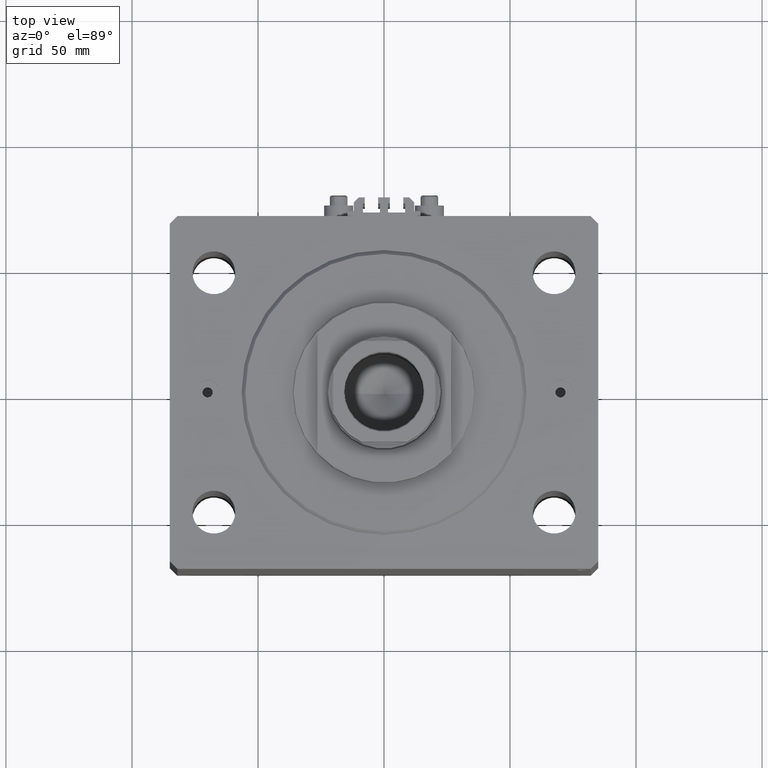
[diagram: clean part render]
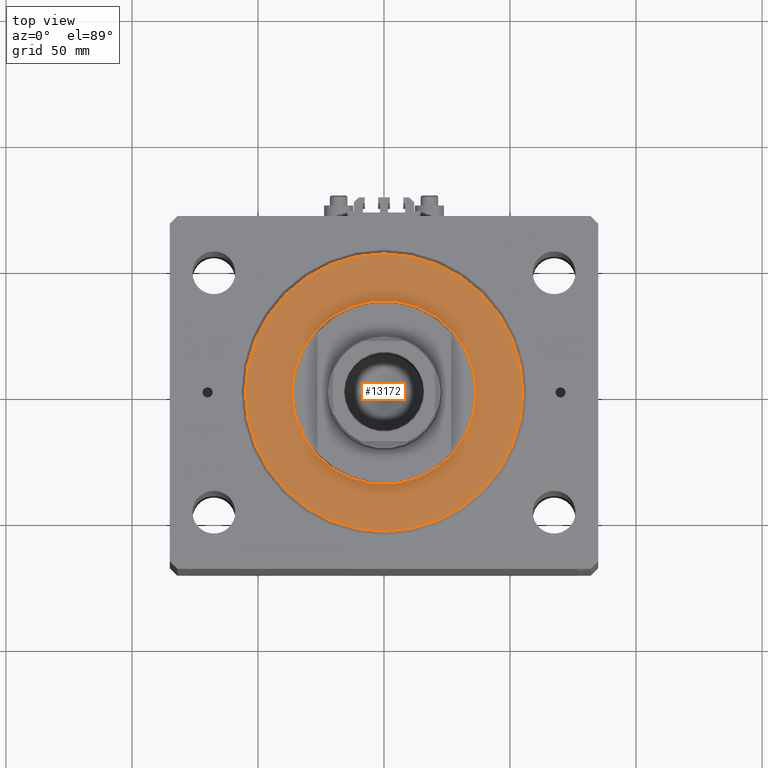
[diagram: same view with one face highlighted and labeled with its STEP entity id]
A machine part, top view. The second image highlights one B-rep face of the part: STEP entity #13172.
In plain terms, the highlighted planar face has unit normal (0, 0, -1).
Its self-contained STEP definition (entity closure, byte-faithful):
#1347 = CIRCLE ( 'NONE', #14326, 36.50000000000000000 ) ;
#1395 = DIRECTION ( 'NONE',  ( 0.000000000000000000, 0.000000000000000000, 1.000000000000000000 ) ) ;
#2717 = DIRECTION ( 'NONE',  ( -0.000000000000000000, -0.000000000000000000, -1.000000000000000000 ) ) ;
#4160 = VERTEX_POINT ( 'NONE', #22828 ) ;
#5340 = VERTEX_POINT ( 'NONE', #23504 ) ;
#5798 = DIRECTION ( 'NONE',  ( 0.000000000000000000, 0.000000000000000000, 1.000000000000000000 ) ) ;
#6238 = EDGE_CURVE ( 'NONE', #6487, #11346, #31523, .T. ) ;
#6296 = DIRECTION ( 'NONE',  ( 1.000000000000000000, 0.000000000000000000, 0.000000000000000000 ) ) ;
#6487 = VERTEX_POINT ( 'NONE', #12406 ) ;
#8943 = EDGE_CURVE ( 'NONE', #4160, #5340, #33856, .T. ) ;
#9151 = CARTESIAN_POINT ( 'NONE',  ( 0.000000000000000000, 0.000000000000000000, 0.000000000000000000 ) ) ;
#9672 = PLANE ( 'NONE',  #37798 ) ;
#11346 = VERTEX_POINT ( 'NONE', #34050 ) ;
#12406 = CARTESIAN_POINT ( 'NONE',  ( -55.00000000000002132, 6.827405905246496343E-15, 0.000000000000000000 ) ) ;
#12509 = EDGE_LOOP ( 'NONE', ( #41496, #19478 ) ) ;
#13172 = ADVANCED_FACE ( 'NONE', ( #41248, #33395 ), #9672, .F. ) ;
#14326 = AXIS2_PLACEMENT_3D ( 'NONE', #9151, #5798, #45436 ) ;
#15417 = ORIENTED_EDGE ( 'NONE', *, *, #6238, .T. ) ;
#15603 = DIRECTION ( 'NONE',  ( 1.000000000000000000, 0.000000000000000000, 0.000000000000000000 ) ) ;
#19478 = ORIENTED_EDGE ( 'NONE', *, *, #28762, .T. ) ;
#19961 = CIRCLE ( 'NONE', #20728, 55.00000000000002132 ) ;
#20530 = EDGE_LOOP ( 'NONE', ( #37796, #15417 ) ) ;
#20617 = CARTESIAN_POINT ( 'NONE',  ( 0.000000000000000000, 0.000000000000000000, 0.000000000000000000 ) ) ;
#20728 = AXIS2_PLACEMENT_3D ( 'NONE', #22539, #29478, #44740 ) ;
#21106 = CARTESIAN_POINT ( 'NONE',  ( 0.000000000000000000, 0.000000000000000000, 0.000000000000000000 ) ) ;
#22539 = CARTESIAN_POINT ( 'NONE',  ( 0.000000000000000000, 0.000000000000000000, 0.000000000000000000 ) ) ;
#22828 = CARTESIAN_POINT ( 'NONE',  ( 36.50000000000000000, 0.000000000000000000, -2.168404344971008868E-16 ) ) ;
#23221 = DIRECTION ( 'NONE',  ( 0.000000000000000000, 0.000000000000000000, 1.000000000000000000 ) ) ;
#23504 = CARTESIAN_POINT ( 'NONE',  ( -36.50000000000000000, 4.469960816887838430E-15, -2.168404344971008868E-16 ) ) ;
#24469 = DIRECTION ( 'NONE',  ( 1.000000000000000000, 0.000000000000000000, -0.000000000000000000 ) ) ;
#25244 = EDGE_CURVE ( 'NONE', #11346, #6487, #19961, .T. ) ;
#28762 = EDGE_CURVE ( 'NONE', #5340, #4160, #1347, .T. ) ;
#29478 = DIRECTION ( 'NONE',  ( -0.000000000000000000, -0.000000000000000000, -1.000000000000000000 ) ) ;
#31523 = CIRCLE ( 'NONE', #43696, 55.00000000000002132 ) ;
#31585 = AXIS2_PLACEMENT_3D ( 'NONE', #37532, #23221, #15603 ) ;
#33395 = FACE_OUTER_BOUND ( 'NONE', #20530, .T. ) ;
#33856 = CIRCLE ( 'NONE', #31585, 36.50000000000000000 ) ;
#34050 = CARTESIAN_POINT ( 'NONE',  ( 55.00000000000002132, 0.000000000000000000, 0.000000000000000000 ) ) ;
#37532 = CARTESIAN_POINT ( 'NONE',  ( 0.000000000000000000, 0.000000000000000000, 0.000000000000000000 ) ) ;
#37796 = ORIENTED_EDGE ( 'NONE', *, *, #25244, .T. ) ;
#37798 = AXIS2_PLACEMENT_3D ( 'NONE', #21106, #1395, #24469 ) ;
#41248 = FACE_BOUND ( 'NONE', #12509, .T. ) ;
#41496 = ORIENTED_EDGE ( 'NONE', *, *, #8943, .T. ) ;
#43696 = AXIS2_PLACEMENT_3D ( 'NONE', #20617, #2717, #6296 ) ;
#44740 = DIRECTION ( 'NONE',  ( 1.000000000000000000, 0.000000000000000000, 0.000000000000000000 ) ) ;
#45436 = DIRECTION ( 'NONE',  ( 1.000000000000000000, 0.000000000000000000, 0.000000000000000000 ) ) ;